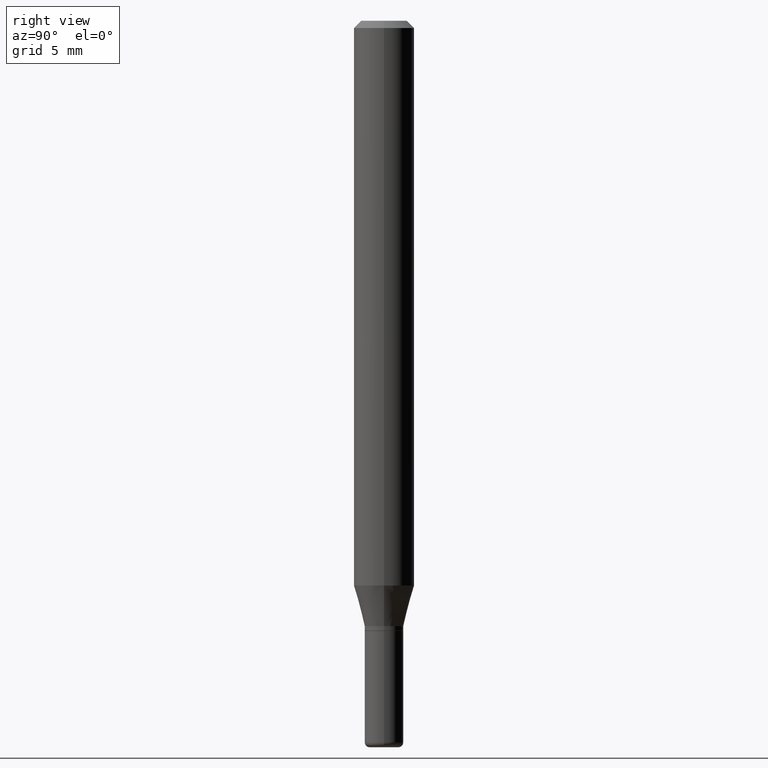
[diagram: clean part render]
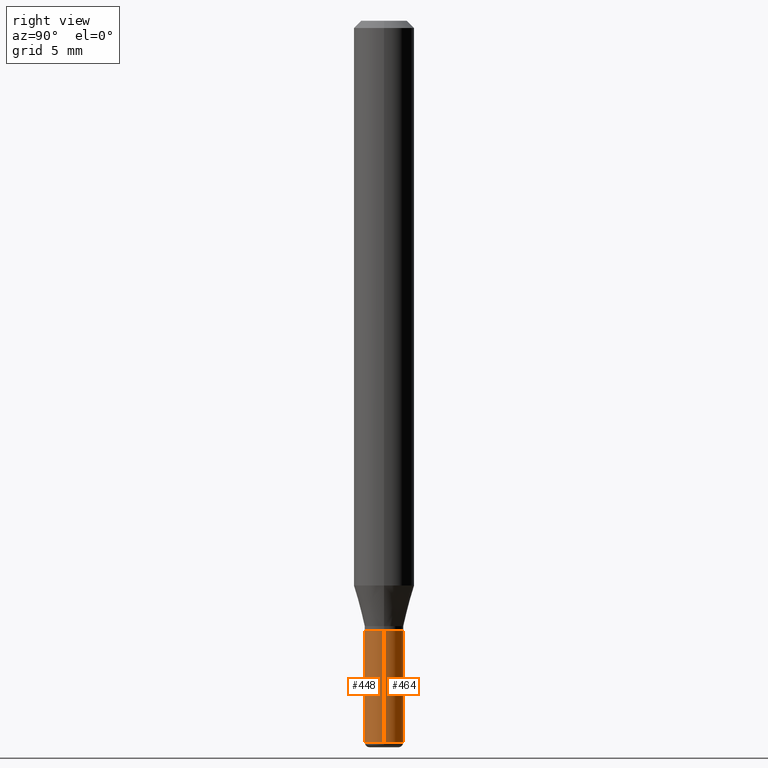
[diagram: same view with one multi-face feature highlighted, each face labeled with its STEP entity id]
A machine part, right view. The highlighted faces form ONE feature: a constant-radius fillet chain: 2 tangent blend faces with common blend radius 1.016 mm. The faces share edges in the B-rep.
Their STEP definitions:
[1] entity #464 (Cylinder):
#19 = CARTESIAN_POINT ( 'NONE',  ( -0.03999999999999997308, 2.842170943040398830E-16, -1.967574036101961108E-30 ) ) ;
#23 = ORIENTED_EDGE ( 'NONE', *, *, #337, .T. ) ;
#28 = VECTOR ( 'NONE', #324, 39.37007874015748143 ) ;
#72 = DIRECTION ( 'NONE',  ( 1.000000000000000000, -6.982962677686266711E-15, 4.876176775795935793E-29 ) ) ;
#83 = CARTESIAN_POINT ( 'NONE',  ( 0.04000000000000000083, -4.678584994049814947E-15, -1.260000000000000231 ) ) ;
#90 = FACE_OUTER_BOUND ( 'NONE', #250, .T. ) ;
#96 = EDGE_CURVE ( 'NONE', #154, #180, #148, .T. ) ;
#114 = ORIENTED_EDGE ( 'NONE', *, *, #96, .T. ) ;
#148 = LINE ( 'NONE', #19, #28 ) ;
#154 = VERTEX_POINT ( 'NONE', #478 ) ;
#155 = CARTESIAN_POINT ( 'NONE',  ( 3.081290695793272291E-29, -4.399266486942364120E-15, -1.260000000000000231 ) ) ;
#157 = DIRECTION ( 'NONE',  ( -2.445468806185136597E-29, 3.491481338843145583E-15, 1.000000000000000000 ) ) ;
#160 = CARTESIAN_POINT ( 'NONE',  ( -0.04000000000000000083, -4.516569746605286181E-15, -1.260000000000000231 ) ) ;
#175 = VECTOR ( 'NONE', #305, 39.37007874015748143 ) ;
#180 = VERTEX_POINT ( 'NONE', #160 ) ;
#206 = DIRECTION ( 'NONE',  ( -2.445468806185136597E-29, 3.491481338843145583E-15, 1.000000000000000000 ) ) ;
#250 = EDGE_LOOP ( 'NONE', ( #23, #114, #301, #363 ) ) ;
#260 = DIRECTION ( 'NONE',  ( -2.445468806185136597E-29, 3.491481338843145583E-15, 1.000000000000000000 ) ) ;
#265 = CARTESIAN_POINT ( 'NONE',  ( 0.000000000000000000, 0.000000000000000000, 0.000000000000000000 ) ) ;
#274 = DIRECTION ( 'NONE',  ( 1.000000000000000000, -6.982962677686268288E-15, 0.000000000000000000 ) ) ;
#298 = CIRCLE ( 'NONE', #476, 0.03999999999999995226 ) ;
#301 = ORIENTED_EDGE ( 'NONE', *, *, #416, .F. ) ;
#305 = DIRECTION ( 'NONE',  ( -2.445468806185136877E-29, 3.491481338843145188E-15, 1.000000000000000000 ) ) ;
#306 = DIRECTION ( 'NONE',  ( 1.000000000000000000, -6.982962677686259611E-15, 0.000000000000000000 ) ) ;
#315 = AXIS2_PLACEMENT_3D ( 'NONE', #155, #157, #306 ) ;
#324 = DIRECTION ( 'NONE',  ( -2.445468806185136877E-29, 3.491481338843145188E-15, 1.000000000000000000 ) ) ;
#337 = EDGE_CURVE ( 'NONE', #491, #154, #298, .T. ) ;
#346 = CARTESIAN_POINT ( 'NONE',  ( 0.03999999999999997308, -2.793185071074504811E-16, 1.950470710318372986E-30 ) ) ;
#363 = ORIENTED_EDGE ( 'NONE', *, *, #514, .F. ) ;
#381 = AXIS2_PLACEMENT_3D ( 'NONE', #265, #260, #72 ) ;
#416 = EDGE_CURVE ( 'NONE', #501, #180, #437, .T. ) ;
#437 = CIRCLE ( 'NONE', #315, 0.04000000000000000083 ) ;
#444 = CARTESIAN_POINT ( 'NONE',  ( 3.643748521215853910E-29, -5.202307194876288105E-15, -1.490000000000000213 ) ) ;
#464 = ADVANCED_FACE ( 'NONE', ( #90 ), #505, .T. ) ;
#476 = AXIS2_PLACEMENT_3D ( 'NONE', #444, #206, #274 ) ;
#478 = CARTESIAN_POINT ( 'NONE',  ( -0.03999999999999995226, -4.516569746605286181E-15, -1.490000000000000213 ) ) ;
#488 = CARTESIAN_POINT ( 'NONE',  ( 0.03999999999999995226, -5.481625701983738143E-15, -1.490000000000000213 ) ) ;
#491 = VERTEX_POINT ( 'NONE', #488 ) ;
#500 = LINE ( 'NONE', #346, #175 ) ;
#501 = VERTEX_POINT ( 'NONE', #83 ) ;
#505 = CYLINDRICAL_SURFACE ( 'NONE', #381, 0.03999999999999997308 ) ;
#514 = EDGE_CURVE ( 'NONE', #491, #501, #500, .T. ) ;
[2] entity #448 (Cylinder):
#19 = CARTESIAN_POINT ( 'NONE',  ( -0.03999999999999997308, 2.842170943040398830E-16, -1.967574036101961108E-30 ) ) ;
#28 = VECTOR ( 'NONE', #324, 39.37007874015748143 ) ;
#80 = DIRECTION ( 'NONE',  ( -2.445468806185136597E-29, 3.491481338843145583E-15, 1.000000000000000000 ) ) ;
#83 = CARTESIAN_POINT ( 'NONE',  ( 0.04000000000000000083, -4.678584994049814947E-15, -1.260000000000000231 ) ) ;
#96 = EDGE_CURVE ( 'NONE', #154, #180, #148, .T. ) ;
#98 = EDGE_CURVE ( 'NONE', #154, #491, #398, .T. ) ;
#139 = DIRECTION ( 'NONE',  ( 1.000000000000000000, -6.982962677686268288E-15, 0.000000000000000000 ) ) ;
#148 = LINE ( 'NONE', #19, #28 ) ;
#149 = EDGE_CURVE ( 'NONE', #180, #501, #461, .T. ) ;
#154 = VERTEX_POINT ( 'NONE', #478 ) ;
#160 = CARTESIAN_POINT ( 'NONE',  ( -0.04000000000000000083, -4.516569746605286181E-15, -1.260000000000000231 ) ) ;
#175 = VECTOR ( 'NONE', #305, 39.37007874015748143 ) ;
#180 = VERTEX_POINT ( 'NONE', #160 ) ;
#198 = CYLINDRICAL_SURFACE ( 'NONE', #230, 0.03999999999999997308 ) ;
#230 = AXIS2_PLACEMENT_3D ( 'NONE', #336, #446, #403 ) ;
#284 = ORIENTED_EDGE ( 'NONE', *, *, #149, .F. ) ;
#294 = ORIENTED_EDGE ( 'NONE', *, *, #514, .T. ) ;
#296 = DIRECTION ( 'NONE',  ( -2.445468806185136597E-29, 3.491481338843145583E-15, 1.000000000000000000 ) ) ;
#303 = ORIENTED_EDGE ( 'NONE', *, *, #98, .T. ) ;
#305 = DIRECTION ( 'NONE',  ( -2.445468806185136877E-29, 3.491481338843145188E-15, 1.000000000000000000 ) ) ;
#324 = DIRECTION ( 'NONE',  ( -2.445468806185136877E-29, 3.491481338843145188E-15, 1.000000000000000000 ) ) ;
#327 = AXIS2_PLACEMENT_3D ( 'NONE', #423, #80, #378 ) ;
#336 = CARTESIAN_POINT ( 'NONE',  ( 0.000000000000000000, 0.000000000000000000, 0.000000000000000000 ) ) ;
#346 = CARTESIAN_POINT ( 'NONE',  ( 0.03999999999999997308, -2.793185071074504811E-16, 1.950470710318372986E-30 ) ) ;
#378 = DIRECTION ( 'NONE',  ( 1.000000000000000000, -6.982962677686259611E-15, 0.000000000000000000 ) ) ;
#398 = CIRCLE ( 'NONE', #460, 0.03999999999999995226 ) ;
#403 = DIRECTION ( 'NONE',  ( 1.000000000000000000, -6.982962677686266711E-15, 4.876176775795935793E-29 ) ) ;
#423 = CARTESIAN_POINT ( 'NONE',  ( 3.081290695793272291E-29, -4.399266486942364120E-15, -1.260000000000000231 ) ) ;
#427 = FACE_OUTER_BOUND ( 'NONE', #458, .T. ) ;
#446 = DIRECTION ( 'NONE',  ( -2.445468806185136597E-29, 3.491481338843145583E-15, 1.000000000000000000 ) ) ;
#448 = ADVANCED_FACE ( 'NONE', ( #427 ), #198, .T. ) ;
#456 = ORIENTED_EDGE ( 'NONE', *, *, #96, .F. ) ;
#458 = EDGE_LOOP ( 'NONE', ( #456, #303, #294, #284 ) ) ;
#460 = AXIS2_PLACEMENT_3D ( 'NONE', #486, #296, #139 ) ;
#461 = CIRCLE ( 'NONE', #327, 0.04000000000000000083 ) ;
#478 = CARTESIAN_POINT ( 'NONE',  ( -0.03999999999999995226, -4.516569746605286181E-15, -1.490000000000000213 ) ) ;
#486 = CARTESIAN_POINT ( 'NONE',  ( 3.643748521215853910E-29, -5.202307194876288105E-15, -1.490000000000000213 ) ) ;
#488 = CARTESIAN_POINT ( 'NONE',  ( 0.03999999999999995226, -5.481625701983738143E-15, -1.490000000000000213 ) ) ;
#491 = VERTEX_POINT ( 'NONE', #488 ) ;
#500 = LINE ( 'NONE', #346, #175 ) ;
#501 = VERTEX_POINT ( 'NONE', #83 ) ;
#514 = EDGE_CURVE ( 'NONE', #491, #501, #500, .T. ) ;